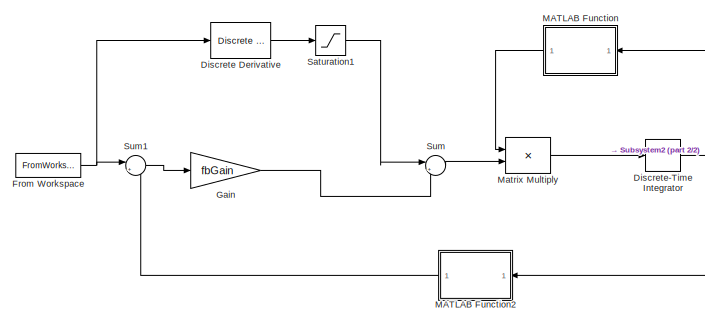
[diagram: root canvas - part 1/2, left side, full height]
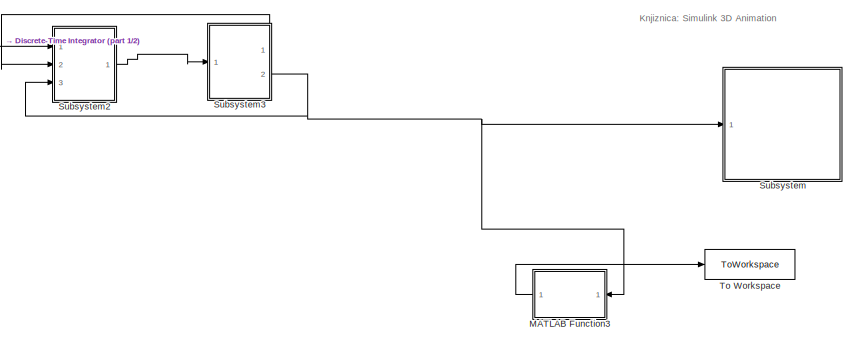
[diagram: root canvas - part 2/2, right side, full height]
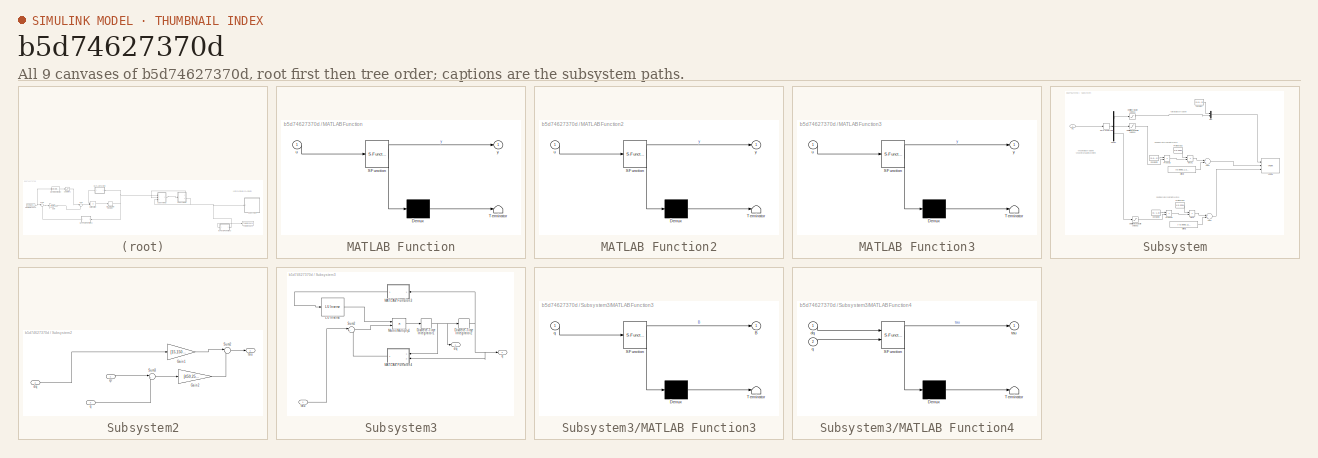
[diagram: thumbnail index - all 9 canvases of the model, root first then tree order]
MODEL slx_b5d74627370d
KIND model
CONFIG AbsTol = auto
CONFIG EnableMultiTasking = on
CONFIG FixedStep = auto
CONFIG MaxStep = auto
CONFIG MinStep = auto
CONFIG RelTol = 1e-3
CONFIG SampleTimeConstraint = Unconstrained
CONFIG Solver = ode45
CONFIG SolverName = ode45
CONFIG StartTime = 0.0
CONFIG StopTime = 10.0
BLOCK [Reference] Discrete Derivative  REF=simulink/Discrete/Discrete Derivative
  Ports = [1, 1]
  SourceBlock = simulink/Discrete/Discrete Derivative
  SourceProductBaseCode = SL
  SourceProductName = Simulink
  SourceType = Discrete Derivative
BLOCK [DiscreteIntegrator] Discrete-Time Integrator
  ICPrevOutput = DiscIntNeverNeededParam
  ICPrevScaledInput = DiscIntNeverNeededParam
  InitialCondition = q0
  InitialConditionSetting = Auto
  Ports = [1, 1]
  SampleTime = dT
BLOCK [FromWorkspace] From Workspace
  SampleTime = 0
  VariableName = xTrajec
  ZeroCross = on
BLOCK [Gain] Gain
  Gain = fbGain
  OutDataTypeStr = Inherit: Inherit via internal rule
  ParamDataTypeStr = Inherit: Inherit via internal rule
  SaturateOnIntegerOverflow = off
BLOCK [SubSystem] MATLAB Function
  ErrorFcn = Stateflow.Translate.translate
  PermitHierarchicalResolution = ExplicitOnly
  Ports = [1, 1]
  RequestExecContextInheritance = off
  SFBlockType = MATLAB Function
  TreatAsAtomicUnit = on
BLOCK [Demux] MATLAB Function/ Demux 
  Outputs = 1
  Ports = [1, 1]
BLOCK [S-Function] MATLAB Function/ SFunction 
  EnableBusSupport = on
  FunctionName = sf_sfun
  PortCounts = [1 2]
  Ports = [1, 2]
  SFcnIsStateOwnerBlock = off
  SFunctionDeploymentMode = off
  Tag = Stateflow S-Function 2
BLOCK [Terminator] MATLAB Function/ Terminator 
BLOCK [Inport] MATLAB Function/u
  IconDisplay = Port number
BLOCK [Outport] MATLAB Function/y
  IconDisplay = Port number
BLOCK [SubSystem] MATLAB Function2
  ErrorFcn = Stateflow.Translate.translate
  PermitHierarchicalResolution = ExplicitOnly
  Ports = [1, 1]
  RequestExecContextInheritance = off
  SFBlockType = MATLAB Function
  TreatAsAtomicUnit = on
BLOCK [Demux] MATLAB Function2/ Demux 
  Outputs = 1
  Ports = [1, 1]
BLOCK [S-Function] MATLAB Function2/ SFunction 
  EnableBusSupport = on
  FunctionName = sf_sfun
  PortCounts = [1 2]
  Ports = [1, 2]
  SFcnIsStateOwnerBlock = off
  SFunctionDeploymentMode = off
  Tag = Stateflow S-Function 3
BLOCK [Terminator] MATLAB Function2/ Terminator 
BLOCK [Inport] MATLAB Function2/u
  IconDisplay = Port number
BLOCK [Outport] MATLAB Function2/y
  IconDisplay = Port number
BLOCK [SubSystem] MATLAB Function3
  ErrorFcn = Stateflow.Translate.translate
  PermitHierarchicalResolution = ExplicitOnly
  Ports = [1, 1]
  RequestExecContextInheritance = off
  SFBlockType = MATLAB Function
  TreatAsAtomicUnit = on
BLOCK [Demux] MATLAB Function3/ Demux 
  Outputs = 1
  Ports = [1, 1]
BLOCK [S-Function] MATLAB Function3/ SFunction 
  EnableBusSupport = on
  FunctionName = sf_sfun
  PortCounts = [1 2]
  Ports = [1, 2]
  SFcnIsStateOwnerBlock = off
  SFunctionDeploymentMode = off
  Tag = Stateflow S-Function 6
BLOCK [Terminator] MATLAB Function3/ Terminator 
BLOCK [Inport] MATLAB Function3/u
  IconDisplay = Port number
BLOCK [Outport] MATLAB Function3/y
  IconDisplay = Port number
BLOCK [Product] Matrix Multiply
  InputSameDT = off
  Multiplication = Matrix(*)
  OutDataTypeStr = Inherit: Inherit via internal rule
  Ports = [2, 1]
  RndMeth = Floor
  SaturateOnIntegerOverflow = off
BLOCK [Saturate] Saturation1
  InputPortMap = u0
  Ports = [1, 1]
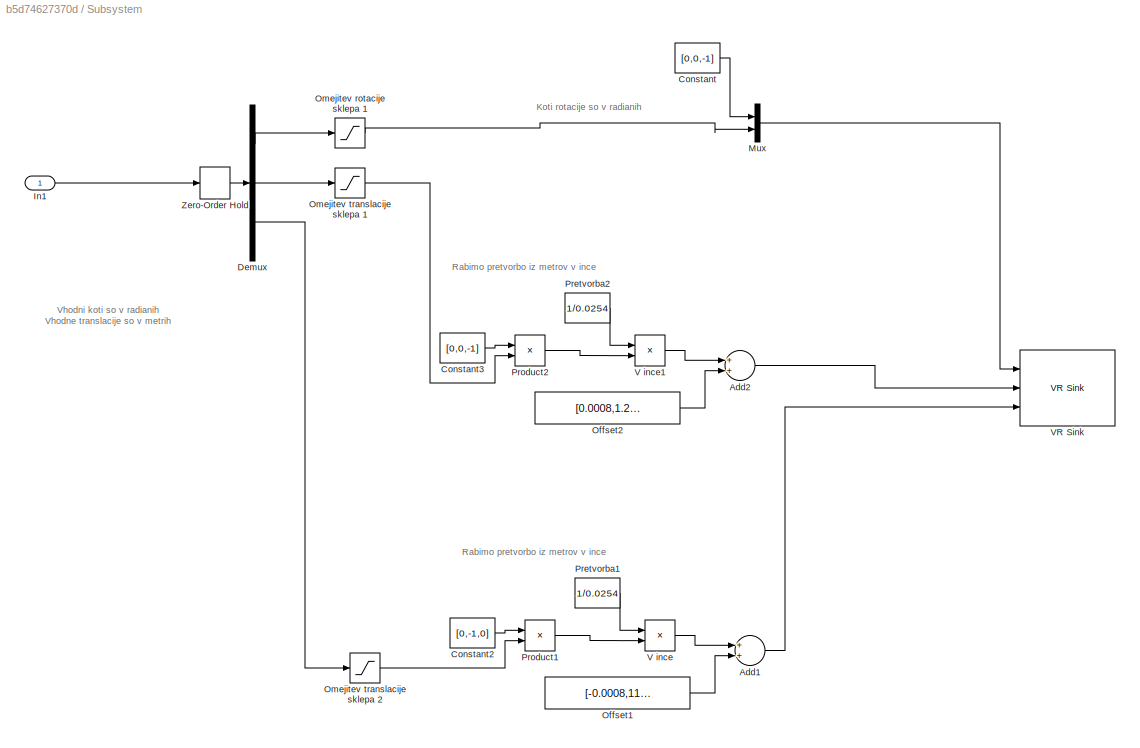
BLOCK [SubSystem] Subsystem
  Ports = [1]
  RequestExecContextInheritance = off
BLOCK [Sum] Subsystem/Add1
  InputSameDT = off
  OutDataTypeStr = Inherit: Inherit via internal rule
  Ports = [2, 1]
  SaturateOnIntegerOverflow = off
BLOCK [Sum] Subsystem/Add2
  InputSameDT = off
  OutDataTypeStr = Inherit: Inherit via internal rule
  Ports = [2, 1]
  SaturateOnIntegerOverflow = off
BLOCK [Constant] Subsystem/Constant
  SampleTime = -1
  Value = [0,0,-1]
BLOCK [Constant] Subsystem/Constant2
  SampleTime = -1
  Value = [0,-1,0]
BLOCK [Constant] Subsystem/Constant3
  SampleTime = -1
  Value = [0,0,-1]
BLOCK [Demux] Subsystem/Demux
  DisplayOption = bar
  Outputs = 3
  Ports = [1, 3]
BLOCK [Inport] Subsystem/In1
  IconDisplay = Port number
BLOCK [Mux] Subsystem/Mux
  DisplayOption = bar
  Inputs = 2
  Ports = [2, 1]
BLOCK [Constant] Subsystem/Offset1
  SampleTime = -1
  Value = [-0.0008,11.21247,-0.7874]
BLOCK [Constant] Subsystem/Offset2
  SampleTime = -1
  Value = [0.0008,1.2763,-10.907]
BLOCK [Saturate] Subsystem/Omejitev rotacije sklepa 1
  InputPortMap = u0
  LowerLimit = -30
  Ports = [1, 1]
  UpperLimit = 30
BLOCK [Saturate] Subsystem/Omejitev translacije sklepa 1
  InputPortMap = u0
  LowerLimit = -0.45729/2
  Ports = [1, 1]
  UpperLimit = 0.45729/2
BLOCK [Saturate] Subsystem/Omejitev translacije sklepa 2
  InputPortMap = u0
  LowerLimit = -0.3797/2
  Ports = [1, 1]
  UpperLimit = 0.3797/2
BLOCK [Constant] Subsystem/Pretvorba1
  SampleTime = -1
  Value = 1/0.0254
BLOCK [Constant] Subsystem/Pretvorba2
  SampleTime = -1
  Value = 1/0.0254
BLOCK [Product] Subsystem/Product1
  InputSameDT = off
  OutDataTypeStr = Inherit: Inherit via internal rule
  Ports = [2, 1]
  SaturateOnIntegerOverflow = off
BLOCK [Product] Subsystem/Product2
  InputSameDT = off
  OutDataTypeStr = Inherit: Inherit via internal rule
  Ports = [2, 1]
  SaturateOnIntegerOverflow = off
BLOCK [Product] Subsystem/V ince
  InputSameDT = off
  OutDataTypeStr = Inherit: Inherit via internal rule
  Ports = [2, 1]
  SaturateOnIntegerOverflow = off
BLOCK [Product] Subsystem/V ince1
  InputSameDT = off
  OutDataTypeStr = Inherit: Inherit via internal rule
  Ports = [2, 1]
  SaturateOnIntegerOverflow = off
BLOCK [Reference] Subsystem/VR Sink  REF=vrlib/VR Sink
  InstantiateOnLoad = on
  Ports = [3]
  SourceBlock = vrlib/VR Sink
  SourceProductBaseCode = SL
  SourceProductName = Simulink
  SourceType = Virtual Reality Sink
BLOCK [ZeroOrderHold] Subsystem/Zero-Order Hold
  SampleTime = 0.05
BLOCK [SubSystem] Subsystem2
  Ports = [3, 1]
  RequestExecContextInheritance = off
BLOCK [Gain] Subsystem2/Gain1
  Gain = [15,150,30]
  OutDataTypeStr = Inherit: Inherit via internal rule
  ParamDataTypeStr = Inherit: Inherit via internal rule
  SaturateOnIntegerOverflow = off
BLOCK [Gain] Subsystem2/Gain2
  Gain = [450,25000,600]
  OutDataTypeStr = Inherit: Inherit via internal rule
  ParamDataTypeStr = Inherit: Inherit via internal rule
  SaturateOnIntegerOverflow = off
BLOCK [Sum] Subsystem2/Sum2
  IconShape = round
  InputSameDT = off
  Inputs = |-+
  OutDataTypeStr = Inherit: Inherit via internal rule
  Ports = [2, 1]
  SaturateOnIntegerOverflow = off
BLOCK [Sum] Subsystem2/Sum3
  IconShape = round
  InputSameDT = off
  Inputs = |+-
  OutDataTypeStr = Inherit: Inherit via internal rule
  Ports = [2, 1]
  SaturateOnIntegerOverflow = off
BLOCK [Inport] Subsystem2/dq 
  IconDisplay = Port number
  Port = 2
BLOCK [Inport] Subsystem2/q
  IconDisplay = Port number
  Port = 3
BLOCK [Inport] Subsystem2/qr
  IconDisplay = Port number
BLOCK [Outport] Subsystem2/tau 
  IconDisplay = Port number
BLOCK [SubSystem] Subsystem3
  Ports = [1, 2]
  RequestExecContextInheritance = off
BLOCK [Reference] Subsystem3/ LU Inverse  REF=dspinverses/ LU Inverse
  Ports = [1, 1]
  SourceBlock = dspinverses/ LU Inverse
  SourceProductBaseCode = DS
  SourceProductName = DSP System Toolbox
  SourceType = LU Inverse
BLOCK [DiscreteIntegrator] Subsystem3/Discrete-Time Integrator1
  ICPrevOutput = DiscIntNeverNeededParam
  ICPrevScaledInput = DiscIntNeverNeededParam
  InitialCondition = [0 0 0]
  InitialConditionSetting = Auto
  Ports = [1, 1]
  SampleTime = dT
BLOCK [DiscreteIntegrator] Subsystem3/Discrete-Time Integrator2
  ICPrevOutput = DiscIntNeverNeededParam
  ICPrevScaledInput = DiscIntNeverNeededParam
  InitialCondition = q0(1:3)
  InitialConditionSetting = Auto
  Ports = [1, 1]
  SampleTime = dT
BLOCK [SubSystem] Subsystem3/MATLAB Function3
  ErrorFcn = Stateflow.Translate.translate
  PermitHierarchicalResolution = ExplicitOnly
  Ports = [1, 1]
  RequestExecContextInheritance = off
  SFBlockType = MATLAB Function
  TreatAsAtomicUnit = on
BLOCK [Demux] Subsystem3/MATLAB Function3/ Demux 
  Outputs = 1
  Ports = [1, 1]
BLOCK [S-Function] Subsystem3/MATLAB Function3/ SFunction 
  EnableBusSupport = on
  FunctionName = sf_sfun
  PortCounts = [1 2]
  Ports = [1, 2]
  SFcnIsStateOwnerBlock = off
  SFunctionDeploymentMode = off
  Tag = Stateflow S-Function 4
BLOCK [Terminator] Subsystem3/MATLAB Function3/ Terminator 
BLOCK [Outport] Subsystem3/MATLAB Function3/B
  IconDisplay = Port number
BLOCK [Inport] Subsystem3/MATLAB Function3/q
  IconDisplay = Port number
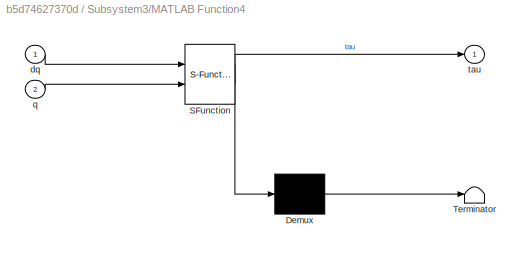
BLOCK [SubSystem] Subsystem3/MATLAB Function4
  ErrorFcn = Stateflow.Translate.translate
  PermitHierarchicalResolution = ExplicitOnly
  Ports = [2, 1]
  RequestExecContextInheritance = off
  SFBlockType = MATLAB Function
  TreatAsAtomicUnit = on
BLOCK [Demux] Subsystem3/MATLAB Function4/ Demux 
  Outputs = 1
  Ports = [1, 1]
BLOCK [S-Function] Subsystem3/MATLAB Function4/ SFunction 
  EnableBusSupport = on
  FunctionName = sf_sfun
  PortCounts = [2 2]
  Ports = [2, 2]
  SFcnIsStateOwnerBlock = off
  SFunctionDeploymentMode = off
  Tag = Stateflow S-Function 5
BLOCK [Terminator] Subsystem3/MATLAB Function4/ Terminator 
BLOCK [Inport] Subsystem3/MATLAB Function4/dq
  IconDisplay = Port number
BLOCK [Inport] Subsystem3/MATLAB Function4/q
  IconDisplay = Port number
  Port = 2
BLOCK [Outport] Subsystem3/MATLAB Function4/tau
  IconDisplay = Port number
BLOCK [Product] Subsystem3/Matrix Multiply1
  InputSameDT = off
  Multiplication = Matrix(*)
  OutDataTypeStr = Inherit: Inherit via internal rule
  Ports = [2, 1]
  RndMeth = Floor
  SaturateOnIntegerOverflow = off
BLOCK [Sum] Subsystem3/Sum2
  IconShape = round
  InputSameDT = off
  Inputs = |+-
  OutDataTypeStr = Inherit: Inherit via internal rule
  Ports = [2, 1]
  SaturateOnIntegerOverflow = off
BLOCK [Outport] Subsystem3/dq
  IconDisplay = Port number
BLOCK [Outport] Subsystem3/q
  IconDisplay = Port number
  Port = 2
BLOCK [Inport] Subsystem3/tau
  IconDisplay = Port number
BLOCK [Sum] Sum
  IconShape = round
  InputSameDT = off
  Inputs = |++
  OutDataTypeStr = Inherit: Inherit via internal rule
  Ports = [2, 1]
  SaturateOnIntegerOverflow = off
BLOCK [Sum] Sum1
  IconShape = round
  InputSameDT = off
  Inputs = |+-
  OutDataTypeStr = Inherit: Inherit via internal rule
  Ports = [2, 1]
  SaturateOnIntegerOverflow = off
BLOCK [ToWorkspace] To Workspace
  FixptAsFi = on
  MaxDataPoints = inf
  Ports = [1]
  SampleTime = -1
  VariableName = testgraf
ANNOTATION (root): Knjiznica: Simulink 3D Animation
ANNOTATION Subsystem: Koti rotacije so v radianih
ANNOTATION Subsystem: Rabimo pretvorbo iz metrov v ince
ANNOTATION Subsystem: Vhodni koti so v radianih Vhodne translacije so v metrih
LINE Discrete Derivative:1 -> Saturation1:1
NET Discrete-Time Integrator:1 -> MATLAB Function2:1, MATLAB Function:1, Subsystem2:1
NET From Workspace:1 -> Discrete Derivative:1, Sum1:1
LINE Gain:1 -> Sum:2
LINE MATLAB Function2:1 -> Sum1:2
LINE MATLAB Function3:1 -> To Workspace:1
LINE MATLAB Function:1 -> Matrix Multiply:1
LINE Matrix Multiply:1 -> Discrete-Time Integrator:1
LINE Saturation1:1 -> Sum:1
LINE Subsystem/Add1:1 -> Subsystem/VR Sink:3
LINE Subsystem/Add2:1 -> Subsystem/VR Sink:2
LINE Subsystem/Constant2:1 -> Subsystem/Product1:1
LINE Subsystem/Constant3:1 -> Subsystem/Product2:1
LINE Subsystem/Constant:1 -> Subsystem/Mux:1
LINE Subsystem/Demux:1 -> Subsystem/Omejitev rotacije sklepa 1:1
LINE Subsystem/Demux:2 -> Subsystem/Omejitev translacije sklepa 1:1
LINE Subsystem/Demux:3 -> Subsystem/Omejitev translacije sklepa 2:1
LINE Subsystem/In1:1 -> Subsystem/Zero-Order Hold:1
LINE Subsystem/Mux:1 -> Subsystem/VR Sink:1
LINE Subsystem/Offset1:1 -> Subsystem/Add1:2
LINE Subsystem/Offset2:1 -> Subsystem/Add2:2
LINE Subsystem/Omejitev rotacije sklepa 1:1 -> Subsystem/Mux:2
LINE Subsystem/Omejitev translacije sklepa 1:1 -> Subsystem/Product2:2
LINE Subsystem/Omejitev translacije sklepa 2:1 -> Subsystem/Product1:2
LINE Subsystem/Pretvorba1:1 -> Subsystem/V ince:1
LINE Subsystem/Pretvorba2:1 -> Subsystem/V ince1:1
LINE Subsystem/Product1:1 -> Subsystem/V ince:2
LINE Subsystem/Product2:1 -> Subsystem/V ince1:2
LINE Subsystem/V ince1:1 -> Subsystem/Add2:1
LINE Subsystem/V ince:1 -> Subsystem/Add1:1
LINE Subsystem/Zero-Order Hold:1 -> Subsystem/Demux:1
LINE Subsystem2/Gain1:1 -> Subsystem2/Sum2:1
LINE Subsystem2/Gain2:1 -> Subsystem2/Sum2:2
LINE Subsystem2/Sum2:1 -> Subsystem2/tau :1
LINE Subsystem2/Sum3:1 -> Subsystem2/Gain2:1
LINE Subsystem2/dq :1 -> Subsystem2/Gain1:1
LINE Subsystem2/q:1 -> Subsystem2/Sum3:2
LINE Subsystem2/qr:1 -> Subsystem2/Sum3:1
LINE Subsystem2:1 -> Subsystem3:1
LINE Subsystem3/ LU Inverse:1 -> Subsystem3/Matrix Multiply1:1
NET Subsystem3/Discrete-Time Integrator1:1 -> Subsystem3/Discrete-Time Integrator2:1, Subsystem3/MATLAB Function4:1, Subsystem3/dq:1
NET Subsystem3/Discrete-Time Integrator2:1 -> Subsystem3/MATLAB Function3:1, Subsystem3/MATLAB Function4:2, Subsystem3/q:1
LINE Subsystem3/MATLAB Function3:1 -> Subsystem3/ LU Inverse:1
LINE Subsystem3/MATLAB Function4:1 -> Subsystem3/Sum2:2
LINE Subsystem3/Matrix Multiply1:1 -> Subsystem3/Discrete-Time Integrator1:1
LINE Subsystem3/Sum2:1 -> Subsystem3/Matrix Multiply1:2
LINE Subsystem3/tau:1 -> Subsystem3/Sum2:1
LINE Subsystem3:1 -> Subsystem2:2
NET Subsystem3:2 -> MATLAB Function3:1, Subsystem2:3, Subsystem:1
LINE Sum1:1 -> Gain:1
LINE Sum:1 -> Matrix Multiply:2
note: NET lines group one-source signal fan-out (src -> all destinations, sorted); 1:1 wires keep LINE
CHART MATLAB Function states=1 transitions=1
  STATE_LABEL 'eML_blk_kernel()'
  STATE_LABEL 'SCRIPT:\nfunction y = invJa(u)\n\ny = ijacZYZeul(u);\n'
CHART MATLAB Function2 states=1 transitions=1
  STATE_LABEL 'eML_blk_kernel()'
  STATE_LABEL 'SCRIPT:\nfunction y = dirkin(u)\n\ny1 = q2ZYZeul(u);\ny = y1(1:3)\n'
CHART Subsystem3/MATLAB Function3 states=1 transitions=1
  STATE_LABEL 'eML_blk_kernel()'
  STATE_LABEL 'SCRIPT:\nfunction B = inertia(q)\n\nB = inertia3(q);\n'
CHART Subsystem3/MATLAB Function4 states=1 transitions=1
  STATE_LABEL 'eML_blk_kernel()'
  STATE_LABEL 'SCRIPT:\nfunction tau = tau(dq, q)\n\ntau = tau3_q_dq(dq, q);\n'
CHART MATLAB Function3 states=1 transitions=1
  STATE_LABEL 'eML_blk_kernel()'
  STATE_LABEL 'SCRIPT:\nfunction y = dirkin(u)\n\ny1 = q2ZYZeul(u);\ny = y1(1:3)\n'
